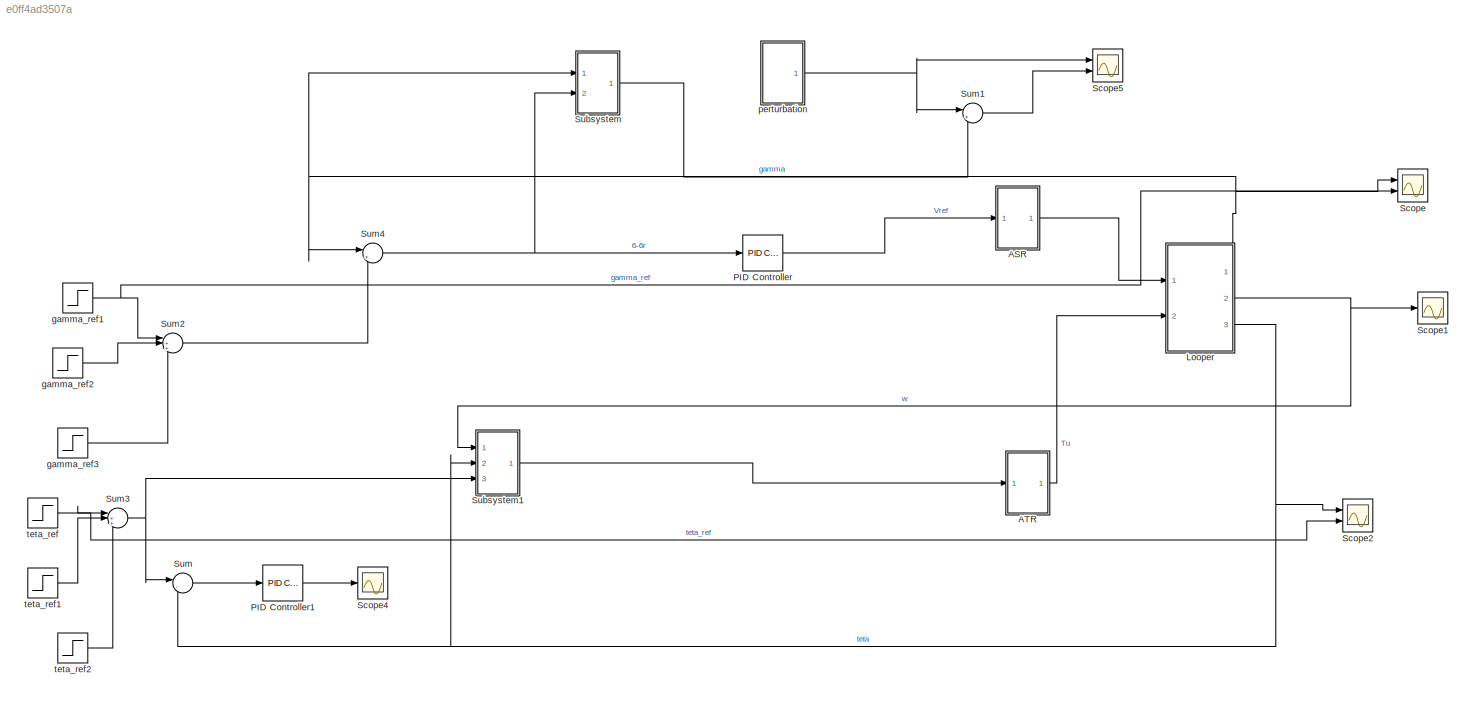
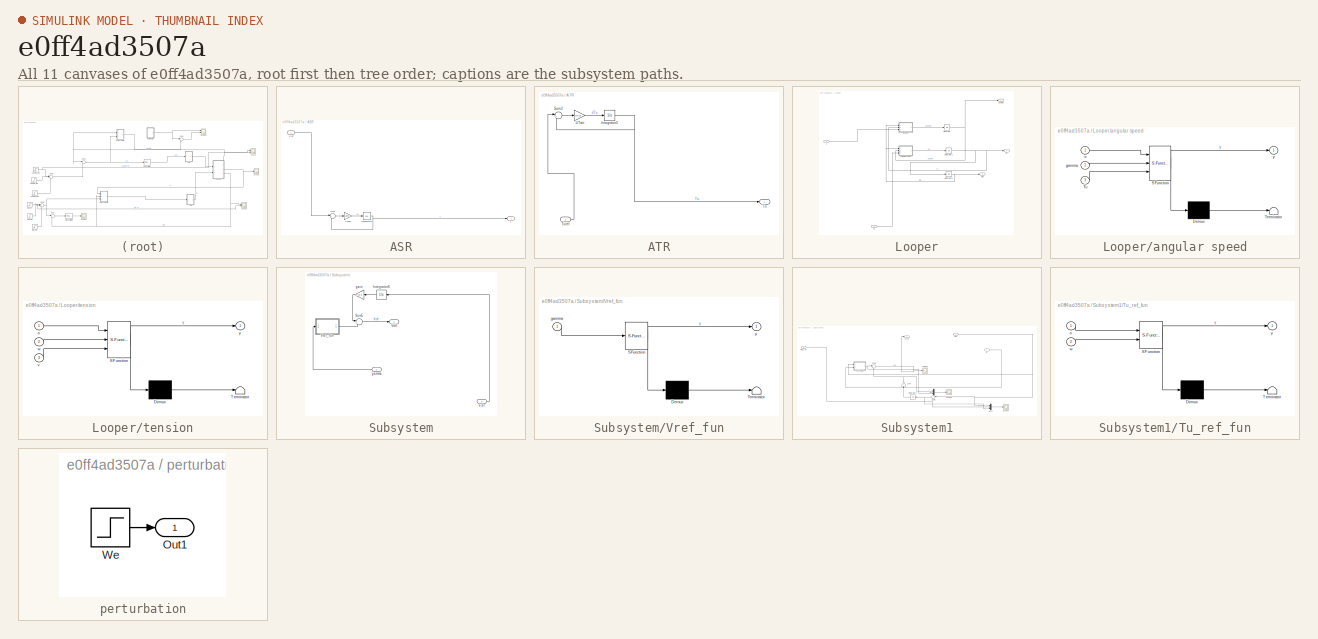
[diagram: thumbnail index - all 11 canvases of the model, root first then tree order]
MODEL slx_e0ff4ad3507a
KIND model
CONFIG AbsTol = auto
CONFIG EnableMultiTasking = off
CONFIG FixedStep = auto
CONFIG MaxStep = auto
CONFIG MinStep = auto
CONFIG RelTol = 1e-3
CONFIG SampleTimeConstraint = Unconstrained
CONFIG Solver = VariableStepAuto
CONFIG SolverName = VariableStepAuto
CONFIG StartTime = 0.0
CONFIG StopTime = 1000
BLOCK [SubSystem] ASR
  Ports = [1, 1]
  RequestExecContextInheritance = off
BLOCK [Gain] ASR/1//Tasr
  Gain = 1/0.04
  OutDataTypeStr = Inherit: Inherit via internal rule
  ParamDataTypeStr = Inherit: Inherit via internal rule
  SaturateOnIntegerOverflow = off
BLOCK [Integrator] ASR/Integrator3
  Ports = [1, 1]
BLOCK [Sum] ASR/Sum
  IconShape = round
  InputSameDT = off
  Inputs = |+-
  OutDataTypeStr = Inherit: Inherit via internal rule
  Ports = [2, 1]
  SaturateOnIntegerOverflow = off
BLOCK [Inport] ASR/Vref
  IconDisplay = Port number
BLOCK [Outport] ASR/v
  IconDisplay = Port number
BLOCK [SubSystem] ATR
  Ports = [1, 1]
  RequestExecContextInheritance = off
BLOCK [Gain] ATR/1//Tatr
  Gain = 1/0.01
  OutDataTypeStr = Inherit: Inherit via internal rule
  ParamDataTypeStr = Inherit: Inherit via internal rule
  SaturateOnIntegerOverflow = off
BLOCK [Integrator] ATR/Integrator5
  Ports = [1, 1]
BLOCK [Sum] ATR/Sum2
  IconShape = round
  InputSameDT = off
  Inputs = |+-
  OutDataTypeStr = Inherit: Inherit via internal rule
  Ports = [2, 1]
  SaturateOnIntegerOverflow = off
BLOCK [Outport] ATR/Tu
  IconDisplay = Port number
BLOCK [Inport] ATR/Turef
  IconDisplay = Port number
BLOCK [SubSystem] Looper
  Ports = [2, 3]
  RequestExecContextInheritance = off
BLOCK [Integrator] Looper/Integrator
  Ports = [1, 1]
BLOCK [Integrator] Looper/Integrator1
  Ports = [1, 1]
BLOCK [Integrator] Looper/Integrator2
  Ports = [1, 1]
BLOCK [Inport] Looper/Tu
  IconDisplay = Port number
  Port = 2
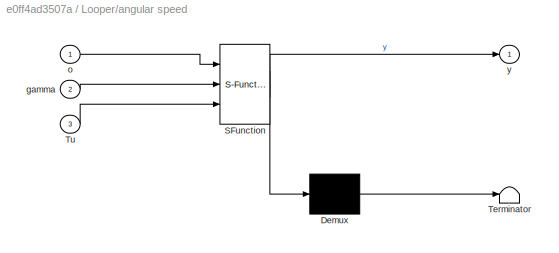
BLOCK [SubSystem] Looper/angular speed
  ErrorFcn = Stateflow.Translate.translate
  PermitHierarchicalResolution = ExplicitOnly
  Ports = [3, 1]
  RequestExecContextInheritance = off
  SFBlockType = MATLAB Function
  TreatAsAtomicUnit = on
BLOCK [Demux] Looper/angular speed/ Demux 
  Outputs = 1
  Ports = [1, 1]
BLOCK [S-Function] Looper/angular speed/ SFunction 
  EnableBusSupport = on
  FunctionName = sf_sfun
  PortCounts = [3 2]
  Ports = [3, 2]
  SFcnIsStateOwnerBlock = off
  SFunctionDeploymentMode = off
  Tag = Stateflow S-Function perturbations 8
BLOCK [Terminator] Looper/angular speed/ Terminator 
BLOCK [Inport] Looper/angular speed/Tu
  IconDisplay = Port number
  Port = 3
BLOCK [Inport] Looper/angular speed/gamma
  IconDisplay = Port number
  Port = 2
BLOCK [Inport] Looper/angular speed/o
  IconDisplay = Port number
BLOCK [Outport] Looper/angular speed/y
  IconDisplay = Port number
BLOCK [Outport] Looper/gamma
  IconDisplay = Port number
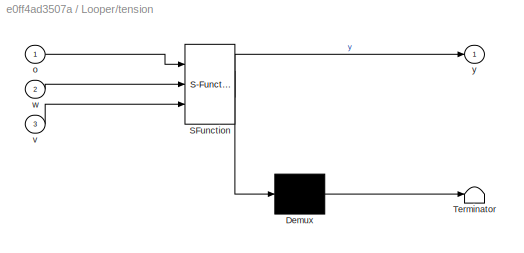
BLOCK [SubSystem] Looper/tension
  ErrorFcn = Stateflow.Translate.translate
  PermitHierarchicalResolution = ExplicitOnly
  Ports = [3, 1]
  RequestExecContextInheritance = off
  SFBlockType = MATLAB Function
  TreatAsAtomicUnit = on
BLOCK [Demux] Looper/tension/ Demux 
  Outputs = 1
  Ports = [1, 1]
BLOCK [S-Function] Looper/tension/ SFunction 
  EnableBusSupport = on
  FunctionName = sf_sfun
  PortCounts = [3 2]
  Ports = [3, 2]
  SFcnIsStateOwnerBlock = off
  SFunctionDeploymentMode = off
  Tag = Stateflow S-Function perturbations 7
BLOCK [Terminator] Looper/tension/ Terminator 
BLOCK [Inport] Looper/tension/o
  IconDisplay = Port number
BLOCK [Inport] Looper/tension/v
  IconDisplay = Port number
  Port = 3
BLOCK [Inport] Looper/tension/w
  IconDisplay = Port number
  Port = 2
BLOCK [Outport] Looper/tension/y
  IconDisplay = Port number
BLOCK [Outport] Looper/teta
  IconDisplay = Port number
  Port = 3
BLOCK [Inport] Looper/v
  IconDisplay = Port number
BLOCK [Outport] Looper/w
  IconDisplay = Port number
  Port = 2
BLOCK [Reference] PID Controller  REF=simulink/Continuous/PID Controller
  Ports = [1, 1]
  SourceBlock = simulink/Continuous/PID Controller
  SourceProductBaseCode = SL
  SourceProductName = Simulink
  SourceType = PID 1dof
BLOCK [Reference] PID Controller1  REF=simulink/Continuous/PID Controller
  Ports = [1, 1]
  SourceBlock = simulink/Continuous/PID Controller
  SourceProductBaseCode = SL
  SourceProductName = Simulink
  SourceType = PID 1dof
BLOCK [Scope] Scope
  Floating = off
  NumInputPorts = 2
  Ports = [2]
  ScopeSpecificationString = Simulink.scopes.TimeScopeBlockCfg('CurrentConfiguration', extmgr.ConfigurationSet(extmgr.Configuration('Core','General UI',true),extmgr.Configuration('Core','Source UI',true),extmgr.Configuration('Sources','WiredSimulink',true,'DataLoggingVariableName','ScopeData1'),extmgr.Configuration('Visuals','Time Domain',true,'SerializedDisplays',{struct('MinYLimReal','-13735265.97429','MaxYLimReal','1168745...<+1532ch>
BLOCK [Scope] Scope1
  Floating = off
  NumInputPorts = 1
  Ports = [1]
  ScopeSpecificationString = Simulink.scopes.TimeScopeBlockCfg('CurrentConfiguration', extmgr.ConfigurationSet(extmgr.Configuration('Core','General UI',true),extmgr.Configuration('Core','Source UI',true),extmgr.Configuration('Sources','WiredSimulink',true,'DataLoggingVariableName','ScopeData2'),extmgr.Configuration('Visuals','Time Domain',true,'SerializedDisplays',{struct('MinYLimReal','-0.40476','MaxYLimReal','0.24598','YLab...<+1458ch>
BLOCK [Scope] Scope2
  Floating = off
  NumInputPorts = 2
  Ports = [2]
  ScopeSpecificationString = Simulink.scopes.TimeScopeBlockCfg('CurrentConfiguration', extmgr.ConfigurationSet(extmgr.Configuration('Core','General UI',true),extmgr.Configuration('Core','Source UI',true),extmgr.Configuration('Sources','WiredSimulink',true,'DataLoggingVariableName','ScopeData3'),extmgr.Configuration('Visuals','Time Domain',true,'SerializedDisplays',{struct('MinYLimReal','-0.08817','MaxYLimReal','0.44378','YLab...<+1472ch>
BLOCK [Scope] Scope4
  Floating = off
  NumInputPorts = 1
  Ports = [1]
  ScopeSpecificationString = Simulink.scopes.TimeScopeBlockCfg('CurrentConfiguration', extmgr.ConfigurationSet(extmgr.Configuration('Core','General UI',true),extmgr.Configuration('Core','Source UI',true),extmgr.Configuration('Sources','WiredSimulink',true,'DataLoggingVariableName','ScopeData5'),extmgr.Configuration('Visuals','Time Domain',true,'SerializedDisplays',{struct('MinYLimReal','-2393.53976','MaxYLimReal','1565.02085'...<+1421ch>
BLOCK [Scope] Scope5
  Floating = off
  NumInputPorts = 2
  Ports = [2]
  ScopeSpecificationString = Simulink.scopes.TimeScopeBlockCfg('CurrentConfiguration', extmgr.ConfigurationSet(extmgr.Configuration('Core','General UI',true),extmgr.Configuration('Core','Source UI',true),extmgr.Configuration('Sources','WiredSimulink',true,'DataLoggingVariableName','ScopeData6'),extmgr.Configuration('Visuals','Time Domain',true,'SerializedDisplays',{struct('MinYLimReal','-17.34454','MaxYLimReal','2.00307','YLa...<+1453ch>
BLOCK [SubSystem] Subsystem
  Ports = [2, 1]
  RequestExecContextInheritance = off
BLOCK [Inport] Subsystem/6-6r
  IconDisplay = Port number
  Port = 2
BLOCK [Integrator] Subsystem/Integrator6
  Ports = [1, 1]
BLOCK [Sum] Subsystem/Sum5
  IconShape = round
  InputSameDT = off
  Inputs = |++
  OutDataTypeStr = Inherit: Inherit via internal rule
  Ports = [2, 1]
  SaturateOnIntegerOverflow = off
BLOCK [Outport] Subsystem/Vref
  IconDisplay = Port number
BLOCK [SubSystem] Subsystem/Vref_fun
  ErrorFcn = Stateflow.Translate.translate
  PermitHierarchicalResolution = ExplicitOnly
  Ports = [1, 1]
  RequestExecContextInheritance = off
  SFBlockType = MATLAB Function
  TreatAsAtomicUnit = on
BLOCK [Demux] Subsystem/Vref_fun/ Demux 
  Outputs = 1
  Ports = [1, 1]
BLOCK [S-Function] Subsystem/Vref_fun/ SFunction 
  EnableBusSupport = on
  FunctionName = sf_sfun
  PortCounts = [1 2]
  Ports = [1, 2]
  SFcnIsStateOwnerBlock = off
  SFunctionDeploymentMode = off
  Tag = Stateflow S-Function perturbations 2
BLOCK [Terminator] Subsystem/Vref_fun/ Terminator 
BLOCK [Inport] Subsystem/Vref_fun/gamma
  IconDisplay = Port number
BLOCK [Outport] Subsystem/Vref_fun/y
  IconDisplay = Port number
BLOCK [Gain] Subsystem/gain
  Gain = 9.7e-9
  OutDataTypeStr = Inherit: Inherit via internal rule
  ParamDataTypeStr = Inherit: Inherit via internal rule
  SaturateOnIntegerOverflow = off
BLOCK [Inport] Subsystem/gamma
  IconDisplay = Port number
BLOCK [SubSystem] Subsystem1
  Ports = [3, 1]
  RequestExecContextInheritance = off
BLOCK [Gain] Subsystem1/10e4
  Gain = 1e4
  OutDataTypeStr = Inherit: Inherit via internal rule
  ParamDataTypeStr = Inherit: Inherit via internal rule
  SaturateOnIntegerOverflow = off
BLOCK [Integrator] Subsystem1/Integrator4
  Ports = [1, 1]
BLOCK [Mux] Subsystem1/Mux
  DisplayOption = bar
  Inputs = 2
  Ports = [2, 1]
BLOCK [Mux] Subsystem1/Mux1
  DisplayOption = bar
  Inputs = 3
  Ports = [3, 1]
BLOCK [Scope] Subsystem1/Scope4
  Floating = off
  NumInputPorts = 1
  Ports = [1]
  ScopeSpecificationString = Simulink.scopes.TimeScopeBlockCfg('CurrentConfiguration', extmgr.ConfigurationSet(extmgr.Configuration('Core','General UI',true),extmgr.Configuration('Core','Source UI',true),extmgr.Configuration('Sources','WiredSimulink',true,'DataLoggingVariableName','ScopeData6'),extmgr.Configuration('Visuals','Time Domain',true,'SerializedDisplays',{struct('MinYLimReal','-58402.33733','MaxYLimReal','52724.5063...<+1489ch>
BLOCK [Scope] Subsystem1/Scope6
  Floating = off
  NumInputPorts = 1
  Ports = [1]
  ScopeSpecificationString = Simulink.scopes.TimeScopeBlockCfg('CurrentConfiguration', extmgr.ConfigurationSet(extmgr.Configuration('Core','General UI',true),extmgr.Configuration('Core','Source UI',true),extmgr.Configuration('Sources','WiredSimulink',true,'DataLoggingVariableName','ScopeData8'),extmgr.Configuration('Visuals','Time Domain',true,'SerializedDisplays',{struct('MinYLimReal','-49827.57338','MaxYLimReal','57487.9349...<+1415ch>
BLOCK [Scope] Subsystem1/Scope7
  Floating = off
  NumInputPorts = 1
  Ports = [1]
  ScopeSpecificationString = Simulink.scopes.TimeScopeBlockCfg('CurrentConfiguration', extmgr.ConfigurationSet(extmgr.Configuration('Core','General UI',true),extmgr.Configuration('Core','Source UI',true),extmgr.Configuration('Sources','WiredSimulink',true,'DataLoggingVariableName','ScopeData9'),extmgr.Configuration('Visuals','Time Domain',true,'SerializedDisplays',{struct('MinYLimReal','-0.21217','MaxYLimReal','0.41146','YLab...<+1402ch>
BLOCK [Sum] Subsystem1/Sum3
  IconShape = round
  InputSameDT = off
  Inputs = |+-
  OutDataTypeStr = Inherit: Inherit via internal rule
  Ports = [2, 1]
  SaturateOnIntegerOverflow = off
BLOCK [Sum] Subsystem1/Sum6
  IconShape = round
  InputSameDT = off
  Inputs = |+-
  OutDataTypeStr = Inherit: Inherit via internal rule
  Ports = [2, 1]
  SaturateOnIntegerOverflow = off
BLOCK [SubSystem] Subsystem1/Tu_ref_fun
  ErrorFcn = Stateflow.Translate.translate
  PermitHierarchicalResolution = ExplicitOnly
  Ports = [2, 1]
  RequestExecContextInheritance = off
  SFBlockType = MATLAB Function
  TreatAsAtomicUnit = on
BLOCK [Demux] Subsystem1/Tu_ref_fun/ Demux 
  Outputs = 1
  Ports = [1, 1]
BLOCK [S-Function] Subsystem1/Tu_ref_fun/ SFunction 
  EnableBusSupport = on
  FunctionName = sf_sfun
  PortCounts = [2 2]
  Ports = [2, 2]
  SFcnIsStateOwnerBlock = off
  SFunctionDeploymentMode = off
  Tag = Stateflow S-Function perturbations 1
BLOCK [Terminator] Subsystem1/Tu_ref_fun/ Terminator 
BLOCK [Inport] Subsystem1/Tu_ref_fun/o
  IconDisplay = Port number
BLOCK [Inport] Subsystem1/Tu_ref_fun/w
  IconDisplay = Port number
  Port = 2
BLOCK [Outport] Subsystem1/Tu_ref_fun/y
  IconDisplay = Port number
BLOCK [Outport] Subsystem1/Turef
  IconDisplay = Port number
BLOCK [Inport] Subsystem1/teta
  IconDisplay = Port number
  Port = 2
BLOCK [Inport] Subsystem1/teta_ref
  IconDisplay = Port number
  Port = 3
BLOCK [Inport] Subsystem1/w
  IconDisplay = Port number
BLOCK [Sum] Sum
  IconShape = round
  InputSameDT = off
  Inputs = |-+
  OutDataTypeStr = Inherit: Inherit via internal rule
  Ports = [2, 1]
  SaturateOnIntegerOverflow = off
BLOCK [Sum] Sum1
  IconShape = round
  InputSameDT = off
  Inputs = |++
  OutDataTypeStr = Inherit: Inherit via internal rule
  Ports = [2, 1]
  SaturateOnIntegerOverflow = off
BLOCK [Sum] Sum2
  IconShape = round
  InputSameDT = off
  Inputs = |++-
  OutDataTypeStr = Inherit: Inherit via internal rule
  Ports = [3, 1]
  SaturateOnIntegerOverflow = off
BLOCK [Sum] Sum3
  IconShape = round
  InputSameDT = off
  Inputs = |++-
  OutDataTypeStr = Inherit: Inherit via internal rule
  Ports = [3, 1]
  SaturateOnIntegerOverflow = off
BLOCK [Sum] Sum4
  IconShape = round
  InputSameDT = off
  Inputs = |+-
  OutDataTypeStr = Inherit: Inherit via internal rule
  Ports = [2, 1]
  SaturateOnIntegerOverflow = off
BLOCK [Step] gamma_ref1
  After = 8*(10e6)
  SampleTime = 0
  Time = 100
BLOCK [Step] gamma_ref2
  After = 1*(10e6)
  SampleTime = 0
  Time = 300
BLOCK [Step] gamma_ref3
  After = 1*(10e6)
  SampleTime = 0
  Time = 350
BLOCK [SubSystem] perturbation
  Ports = [0, 1]
  RequestExecContextInheritance = off
BLOCK [Outport] perturbation/Out1
  IconDisplay = Port number
BLOCK [Step] perturbation/We
  After = 0.01
  SampleTime = 0
BLOCK [Step] teta_ref
  After = 0.3491
  SampleTime = 0
  Time = 100
BLOCK [Step] teta_ref1
  After = 0.05
  SampleTime = 0
  Time = 300
BLOCK [Step] teta_ref2
  After = 0.05
  SampleTime = 0
  Time = 350
LINE ASR/1//Tasr:1 -> ASR/Integrator3:1
NET ASR/Integrator3:1 -> ASR/Sum:2, ASR/v:1
LINE ASR/Sum:1 -> ASR/1//Tasr:1
LINE ASR/Vref:1 -> ASR/Sum:1
LINE ASR:1 -> Looper:1
LINE ATR/1//Tatr:1 -> ATR/Integrator5:1
NET ATR/Integrator5:1 -> ATR/Sum2:2, ATR/Tu:1
LINE ATR/Sum2:1 -> ATR/1//Tatr:1
LINE ATR/Turef:1 -> ATR/Sum2:1
LINE ATR:1 -> Looper:2
NET Looper/Integrator1:1 -> Looper/angular speed:1, Looper/tension:1, Looper/teta:1
NET Looper/Integrator2:1 -> Looper/Integrator1:1, Looper/tension:2, Looper/w:1
NET Looper/Integrator:1 -> Looper/angular speed:2, Looper/gamma:1
LINE Looper/Tu:1 -> Looper/angular speed:3
LINE Looper/angular speed:1 -> Looper/Integrator2:1
LINE Looper/tension:1 -> Looper/Integrator:1
LINE Looper/v:1 -> Looper/tension:3
NET Looper:1 -> Scope:1, Subsystem:1, Sum4:1
NET Looper:2 -> Scope1:1, Subsystem1:1
NET Looper:3 -> Scope2:1, Subsystem1:2, Sum:2
LINE PID Controller1:1 -> Scope4:1
LINE PID Controller:1 -> ASR:1
LINE Subsystem/6-6r:1 -> Subsystem/Integrator6:1
LINE Subsystem/Integrator6:1 -> Subsystem/gain:1
LINE Subsystem/Sum5:1 -> Subsystem/Vref:1
LINE Subsystem/Vref_fun:1 -> Subsystem/Sum5:2
LINE Subsystem/gain:1 -> Subsystem/Sum5:1
LINE Subsystem/gamma:1 -> Subsystem/Vref_fun:1
NET Subsystem1/10e4:1 -> Subsystem1/Mux:1, Subsystem1/Sum6:2
LINE Subsystem1/Integrator4:1 -> Subsystem1/10e4:1
LINE Subsystem1/Mux1:1 -> Subsystem1/Scope7:1
LINE Subsystem1/Mux:1 -> Subsystem1/Scope6:1
NET Subsystem1/Sum3:1 -> Subsystem1/Integrator4:1, Subsystem1/Mux1:3
NET Subsystem1/Sum6:1 -> Subsystem1/Scope4:1, Subsystem1/Turef:1
NET Subsystem1/Tu_ref_fun:1 -> Subsystem1/Mux:2, Subsystem1/Sum6:1
NET Subsystem1/teta:1 -> Subsystem1/Mux1:1, Subsystem1/Sum3:1, Subsystem1/Tu_ref_fun:1
NET Subsystem1/teta_ref:1 -> Subsystem1/Mux1:2, Subsystem1/Sum3:2
LINE Subsystem1/w:1 -> Subsystem1/Tu_ref_fun:2
LINE Subsystem1:1 -> ATR:1
LINE Subsystem:1 -> Sum1:2
LINE Sum1:1 -> Scope5:2
LINE Sum2:1 -> Sum4:2
NET Sum3:1 -> Subsystem1:3, Sum:1
NET Sum4:1 -> PID Controller:1, Subsystem:2
LINE Sum:1 -> PID Controller1:1
NET gamma_ref1:1 -> Scope:2, Sum2:1
LINE gamma_ref2:1 -> Sum2:2
LINE gamma_ref3:1 -> Sum2:3
LINE perturbation/We:1 -> perturbation/Out1:1
NET perturbation:1 -> Scope5:1, Sum1:1
LINE teta_ref1:1 -> Sum3:2
LINE teta_ref2:1 -> Sum3:3
NET teta_ref:1 -> Scope2:2, Sum3:1
note: NET lines group one-source signal fan-out (src -> all destinations, sorted); 1:1 wires keep LINE
CHART Subsystem1/Tu_ref_fun states=1 transitions=1
  STATE_LABEL 'eML_blk_kernel()'
  STATE_LABEL 'SCRIPT:\nfunction y = fcn(o,w)\nRo=7800;\nh=0.00728;\nwc=1.5;\nRl=0.611;\ng=9.8;\nMl=1862.9;\nRg=0.194;\nJ=172.65;\nL1=2.34;\nRr=0.0925;\nL4=3.46;\nH1=0.195;\nE=1.2e10;\ngamma_r=8e6;\no_r=0.3491;\nTu0=0;\nTu_ref= Tu0 -(8e3)*(o-o_r) - (7e3)*w\ny = Tu_ref;\n'
CHART Subsystem/Vref_fun states=1 transitions=1
  STATE_LABEL 'eML_blk_kernel()'
  STATE_LABEL 'SCRIPT:\nfunction y = fcn(gamma)\nRo=7800;\nh=0.00728;\nwc=1.5;\nRl=0.611;\ng=9.8;\nMl=1862.9;\nRg=0.194;\nJ=172.65;\nL1=2.34;\nRr=0.0925;\nL4=3.46;\nH1=0.195;\nE=1.2e10;\ngamma_r=8e6;\no_r=0.3491;\nTu0=0;\nvref=(9.7e-10)*(gamma-gamma_r) ;\ny = vref;\n'
CHART Looper/tension states=1 transitions=1
  STATE_LABEL 'eML_blk_kernel()'
  STATE_LABEL 'SCRIPT:\nfunction y = fcn(o,w,v)\nRo=7800;\nh=0.00728;\nwc=1.5;\nRl=0.611;\ng=9.8;\nMl=1862.9;\nRg=0.194;\nJ=172.65;\nL1=2.34;\nRr=0.0925;\nL4=3.46;\nH1=0.195;\nE=1.2e10;\ngamma_r=8e6;\no_r=0.3491;\nTu0=0;\n%L=sqrt((L1+Rl*cos(o))^(2)+(Rl*sin(o)+Rr-H1)^(2))+sqrt((L4+Rl*cos(o))^(2)+(Rl*sin(o)+Rr-H1)^(2));\nL=5.8;\na=atan((Rl*sin(o)-H1+Rr)/(L1+Rl*cos(o)));\nB=atan((Rl*sin(o)-H1+Rr)/(L4-Rl*cos(o)));\nF3=Rl*(sin(o+B)-sin(o-...<+42ch>'
CHART Looper/angular speed states=1 transitions=1
  STATE_LABEL 'eML_blk_kernel()'
  STATE_LABEL 'SCRIPT:\nfunction y = fcn(o,gamma,Tu)\nRo=7800;\nh=0.00728;\nwc=1.5;\nRl=0.611;\ng=9.8;\nMl=1862.9;\nRg=0.194;\nJ=172.65;\nL1=2.34;\nRr=0.0925;\nL4=3.46;\nH1=0.195;\nE=1.2e10;\ngamma_r=8e6;\no_r=0.3491;\nTu0=0;\n%L=sqrt((L1+Rl*cos(o))^(2)+(Rl*sin(o)+Rr-H1)^(2))+sqrt((L4+Rl*cos(o))^(2)+(Rl*sin(o)+Rr-H1)^(2))\nL=5.8;\na=atan((Rl*sin(o)-H1+Rr)/(L1+Rl*cos(o)))\nB=atan((Rl*sin(o)-H1+Rr)/(L4-Rl*cos(o)))\nF1=0.5*g*Ro*L*h*wc*R...<+101ch>'
